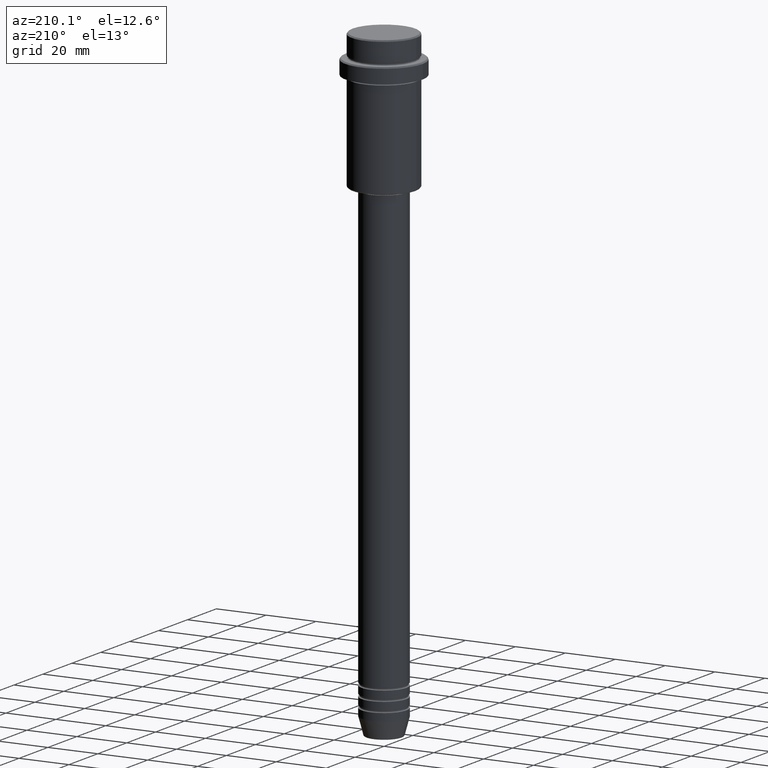
[diagram: clean part render]
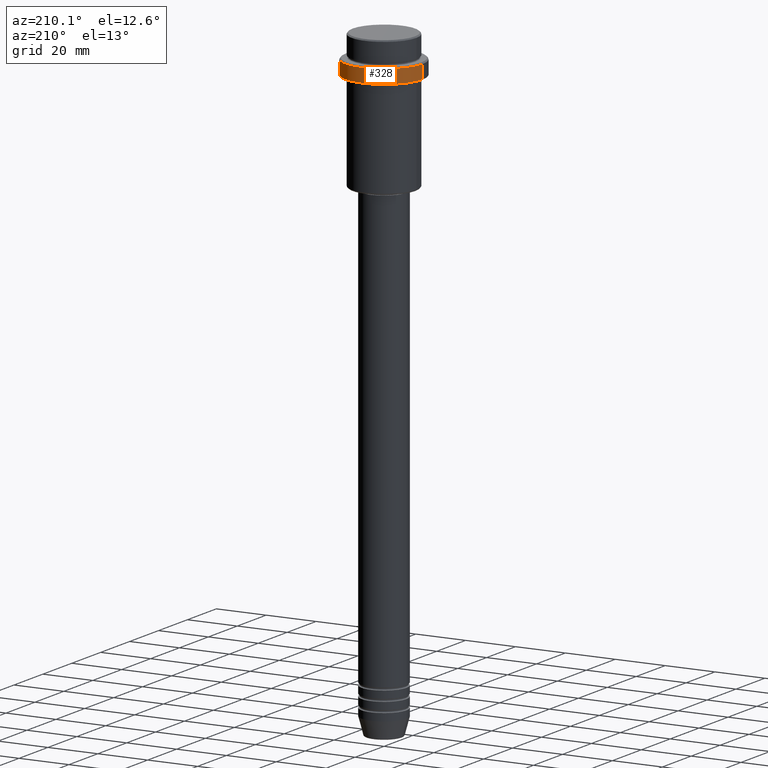
[diagram: same view with one face highlighted and labeled with its STEP entity id]
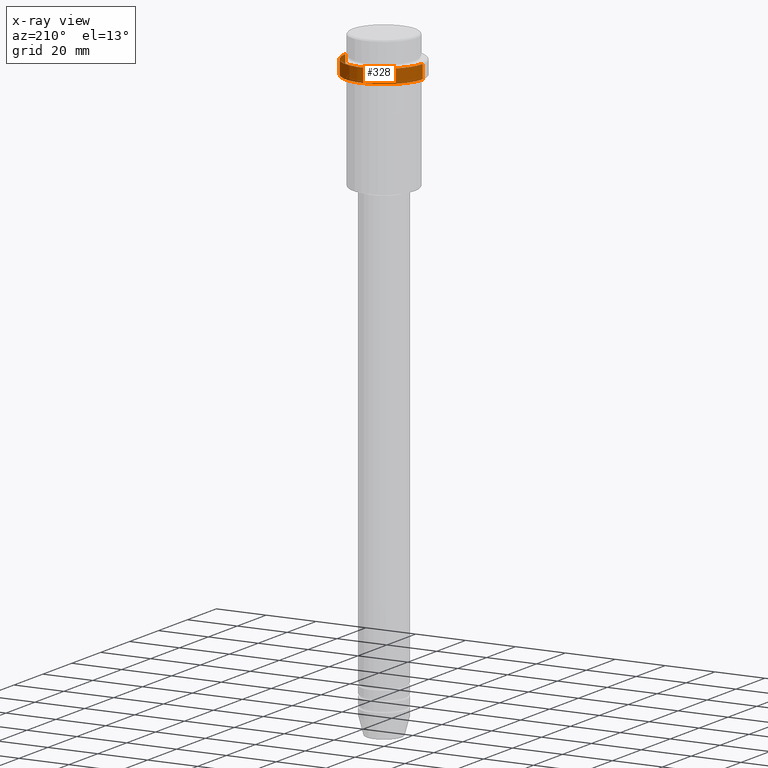
[diagram: x-ray of the same camera — body ghosted, the highlighted face saturated]
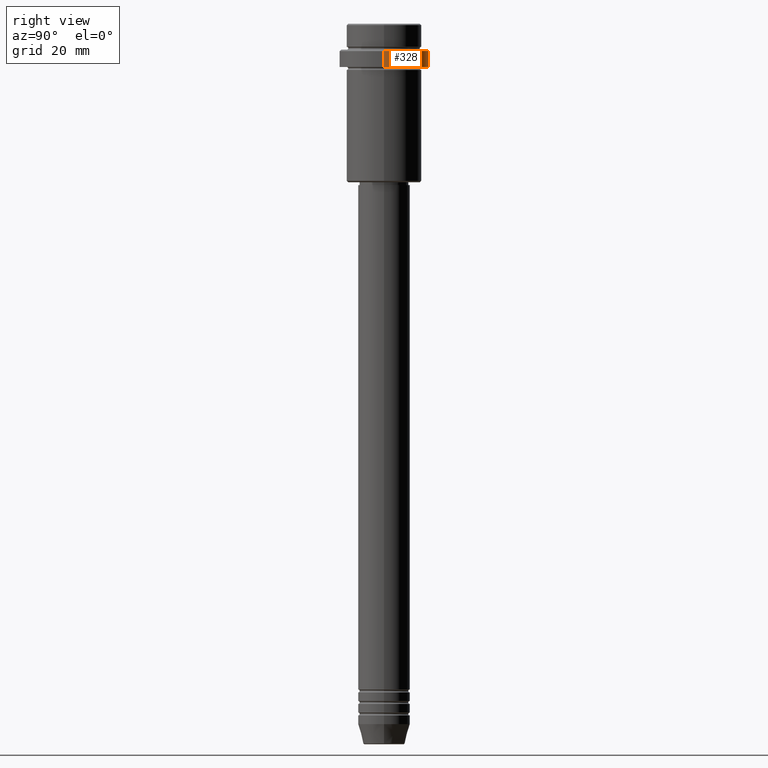
[diagram: same view with one face highlighted and labeled with its STEP entity id]
A machine part, auxiliary view. The second image highlights one B-rep face of the part: STEP entity #328.
The next image is the same camera in x-ray: the body ghosted, the highlighted face saturated — about 0% of this face is hidden behind the body in this view.
A second angle (right view) of the same face is appended — the face is thin or edge-on in the first view.
In plain terms, the highlighted cylindrical surface (partial cylindrical patch) has radius 15.5 mm, axis along (-0, -0, 1).
Its self-contained STEP definition (entity closure, byte-faithful):
#11 = DIRECTION ( 'NONE',  ( 1.000000000000000000, 0.000000000000000000, 0.000000000000000000 ) ) ;
#47 = CARTESIAN_POINT ( 'NONE',  ( 15.50000000000000000, 0.000000000000000000, 0.000000000000000000 ) ) ;
#87 = DIRECTION ( 'NONE',  ( -0.000000000000000000, -0.000000000000000000, 1.000000000000000000 ) ) ;
#113 = CYLINDRICAL_SURFACE ( 'NONE', #152, 15.50000000000000000 ) ;
#143 = DIRECTION ( 'NONE',  ( 1.000000000000000000, 0.000000000000000000, 0.000000000000000000 ) ) ;
#150 = DIRECTION ( 'NONE',  ( 0.000000000000000000, 0.000000000000000000, -1.000000000000000000 ) ) ;
#152 = AXIS2_PLACEMENT_3D ( 'NONE', #562, #1002, #11 ) ;
#208 = LINE ( 'NONE', #973, #637 ) ;
#305 = ORIENTED_EDGE ( 'NONE', *, *, #1136, .T. ) ;
#328 = ADVANCED_FACE ( 'NONE', ( #672 ), #113, .T. ) ;
#413 = EDGE_CURVE ( 'NONE', #916, #1028, #1273, .T. ) ;
#430 = VERTEX_POINT ( 'NONE', #1044 ) ;
#433 = EDGE_CURVE ( 'NONE', #430, #1028, #712, .T. ) ;
#462 = DIRECTION ( 'NONE',  ( -0.000000000000000000, -0.000000000000000000, 1.000000000000000000 ) ) ;
#463 = ORIENTED_EDGE ( 'NONE', *, *, #413, .T. ) ;
#493 = CARTESIAN_POINT ( 'NONE',  ( 0.000000000000000000, 0.000000000000000000, -9.499999999999957367 ) ) ;
#562 = CARTESIAN_POINT ( 'NONE',  ( 0.000000000000000000, 0.000000000000000000, 0.000000000000000000 ) ) ;
#590 = CARTESIAN_POINT ( 'NONE',  ( 0.000000000000000000, 0.000000000000000000, -15.00000000000000178 ) ) ;
#616 = AXIS2_PLACEMENT_3D ( 'NONE', #590, #462, #143 ) ;
#637 = VECTOR ( 'NONE', #87, 1000.000000000000000 ) ;
#672 = FACE_OUTER_BOUND ( 'NONE', #1199, .T. ) ;
#682 = VERTEX_POINT ( 'NONE', #1269 ) ;
#712 = LINE ( 'NONE', #47, #907 ) ;
#907 = VECTOR ( 'NONE', #925, 1000.000000000000000 ) ;
#916 = VERTEX_POINT ( 'NONE', #1304 ) ;
#925 = DIRECTION ( 'NONE',  ( -0.000000000000000000, -0.000000000000000000, 1.000000000000000000 ) ) ;
#973 = CARTESIAN_POINT ( 'NONE',  ( -15.50000000000000000, 1.898202538678397557E-15, 0.000000000000000000 ) ) ;
#990 = EDGE_CURVE ( 'NONE', #430, #682, #1318, .T. ) ;
#1002 = DIRECTION ( 'NONE',  ( -0.000000000000000000, -0.000000000000000000, 1.000000000000000000 ) ) ;
#1023 = CARTESIAN_POINT ( 'NONE',  ( 15.50000000000000000, 0.000000000000000000, -9.499999999999957367 ) ) ;
#1028 = VERTEX_POINT ( 'NONE', #1023 ) ;
#1044 = CARTESIAN_POINT ( 'NONE',  ( 15.50000000000000000, 0.000000000000000000, -15.00000000000000178 ) ) ;
#1059 = AXIS2_PLACEMENT_3D ( 'NONE', #493, #150, #1229 ) ;
#1130 = ORIENTED_EDGE ( 'NONE', *, *, #433, .F. ) ;
#1136 = EDGE_CURVE ( 'NONE', #682, #916, #208, .T. ) ;
#1199 = EDGE_LOOP ( 'NONE', ( #1260, #305, #463, #1130 ) ) ;
#1229 = DIRECTION ( 'NONE',  ( 1.000000000000000000, 0.000000000000000000, 0.000000000000000000 ) ) ;
#1260 = ORIENTED_EDGE ( 'NONE', *, *, #990, .T. ) ;
#1269 = CARTESIAN_POINT ( 'NONE',  ( -15.50000000000000000, 1.898202538678397557E-15, -15.00000000000000178 ) ) ;
#1273 = CIRCLE ( 'NONE', #1059, 15.50000000000000000 ) ;
#1304 = CARTESIAN_POINT ( 'NONE',  ( -15.50000000000000000, 1.898202538678397557E-15, -9.499999999999957367 ) ) ;
#1318 = CIRCLE ( 'NONE', #616, 15.50000000000000000 ) ;